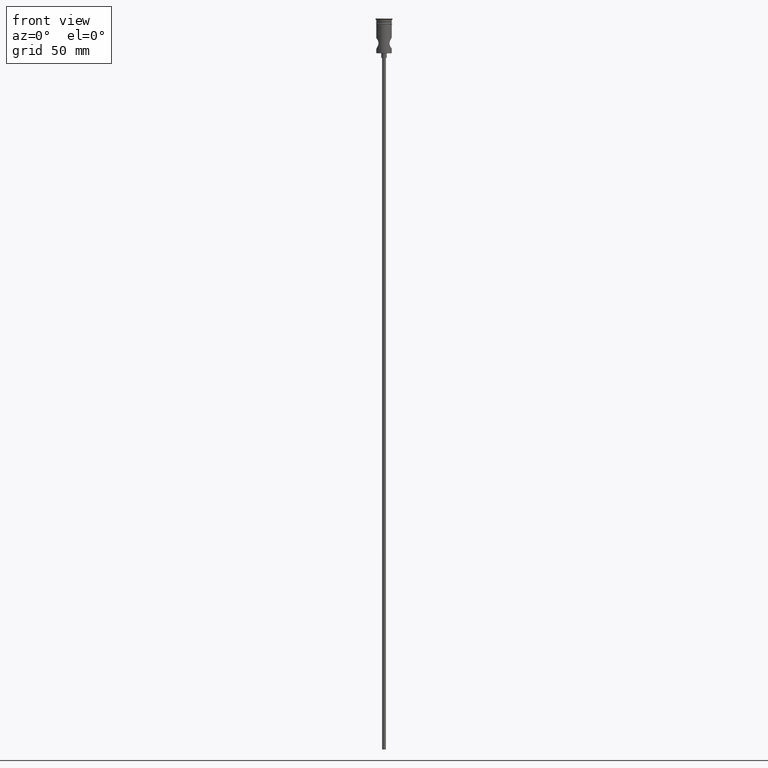
[diagram: clean part render]
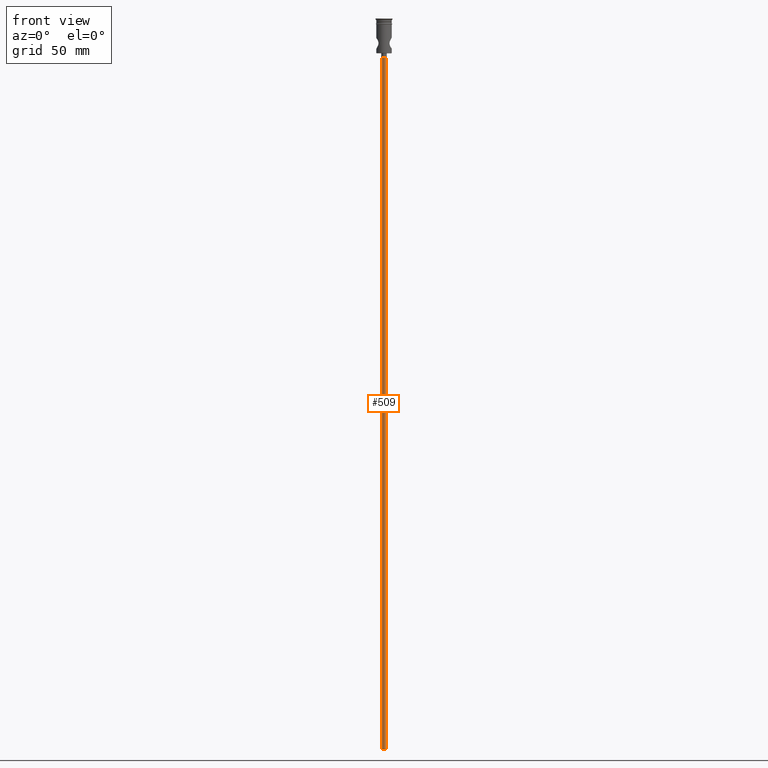
[diagram: same view with one face highlighted and labeled with its STEP entity id]
A machine part, front view. The second image highlights one B-rep face of the part: STEP entity #509.
In plain terms, the highlighted cylindrical surface (edge-blend (fillet) strip) has radius 1.25 mm, axis along (-0, -0, 1).
Its self-contained STEP definition (entity closure, byte-faithful):
#101 = CIRCLE ( 'NONE', #1326, 1.250000000000000000 ) ;
#109 = CARTESIAN_POINT ( 'NONE',  ( 0.000000000000000000, 0.000000000000000000, -472.5000000000000568 ) ) ;
#148 = DIRECTION ( 'NONE',  ( 0.000000000000000000, 0.000000000000000000, -1.000000000000000000 ) ) ;
#180 = VERTEX_POINT ( 'NONE', #1075 ) ;
#235 = EDGE_CURVE ( 'NONE', #944, #850, #101, .T. ) ;
#239 = CARTESIAN_POINT ( 'NONE',  ( 1.250000000000000000, 0.000000000000000000, -472.5000000000000568 ) ) ;
#278 = EDGE_CURVE ( 'NONE', #1092, #944, #698, .T. ) ;
#393 = EDGE_CURVE ( 'NONE', #1092, #180, #783, .T. ) ;
#431 = CYLINDRICAL_SURFACE ( 'NONE', #833, 1.250000000000000000 ) ;
#502 = DIRECTION ( 'NONE',  ( -0.000000000000000000, -0.000000000000000000, 1.000000000000000000 ) ) ;
#509 = ADVANCED_FACE ( 'NONE', ( #550 ), #431, .T. ) ;
#550 = FACE_OUTER_BOUND ( 'NONE', #1265, .T. ) ;
#571 = DIRECTION ( 'NONE',  ( 1.000000000000000000, 0.000000000000000000, 0.000000000000000000 ) ) ;
#588 = CARTESIAN_POINT ( 'NONE',  ( -1.250000000000000000, 1.530808498934191571E-16, -472.5000000000000568 ) ) ;
#598 = DIRECTION ( 'NONE',  ( -1.000000000000000000, 0.000000000000000000, 0.000000000000000000 ) ) ;
#637 = DIRECTION ( 'NONE',  ( -1.000000000000000000, 0.000000000000000000, 0.000000000000000000 ) ) ;
#691 = CARTESIAN_POINT ( 'NONE',  ( 1.250000000000000000, 0.000000000000000000, -25.50000000000000000 ) ) ;
#698 = LINE ( 'NONE', #1252, #716 ) ;
#703 = ORIENTED_EDGE ( 'NONE', *, *, #927, .F. ) ;
#716 = VECTOR ( 'NONE', #502, 1000.000000000000000 ) ;
#783 = CIRCLE ( 'NONE', #1034, 1.250000000000000000 ) ;
#833 = AXIS2_PLACEMENT_3D ( 'NONE', #109, #882, #571 ) ;
#850 = VERTEX_POINT ( 'NONE', #889 ) ;
#882 = DIRECTION ( 'NONE',  ( -0.000000000000000000, -0.000000000000000000, 1.000000000000000000 ) ) ;
#889 = CARTESIAN_POINT ( 'NONE',  ( -1.250000000000000000, 1.530808498934191571E-16, -25.50000000000000000 ) ) ;
#902 = CARTESIAN_POINT ( 'NONE',  ( 0.000000000000000000, 0.000000000000000000, -25.50000000000000000 ) ) ;
#915 = DIRECTION ( 'NONE',  ( -0.000000000000000000, -0.000000000000000000, 1.000000000000000000 ) ) ;
#927 = EDGE_CURVE ( 'NONE', #180, #850, #933, .T. ) ;
#928 = ORIENTED_EDGE ( 'NONE', *, *, #393, .F. ) ;
#933 = LINE ( 'NONE', #588, #1104 ) ;
#944 = VERTEX_POINT ( 'NONE', #691 ) ;
#946 = DIRECTION ( 'NONE',  ( 0.000000000000000000, 0.000000000000000000, -1.000000000000000000 ) ) ;
#1034 = AXIS2_PLACEMENT_3D ( 'NONE', #1269, #946, #637 ) ;
#1075 = CARTESIAN_POINT ( 'NONE',  ( -1.250000000000000000, 1.530808498934191571E-16, -472.5000000000000568 ) ) ;
#1092 = VERTEX_POINT ( 'NONE', #239 ) ;
#1104 = VECTOR ( 'NONE', #915, 1000.000000000000000 ) ;
#1245 = ORIENTED_EDGE ( 'NONE', *, *, #278, .T. ) ;
#1252 = CARTESIAN_POINT ( 'NONE',  ( 1.250000000000000000, 0.000000000000000000, -472.5000000000000568 ) ) ;
#1265 = EDGE_LOOP ( 'NONE', ( #703, #928, #1245, #1384 ) ) ;
#1269 = CARTESIAN_POINT ( 'NONE',  ( 0.000000000000000000, 0.000000000000000000, -472.5000000000000568 ) ) ;
#1326 = AXIS2_PLACEMENT_3D ( 'NONE', #902, #148, #598 ) ;
#1384 = ORIENTED_EDGE ( 'NONE', *, *, #235, .T. ) ;